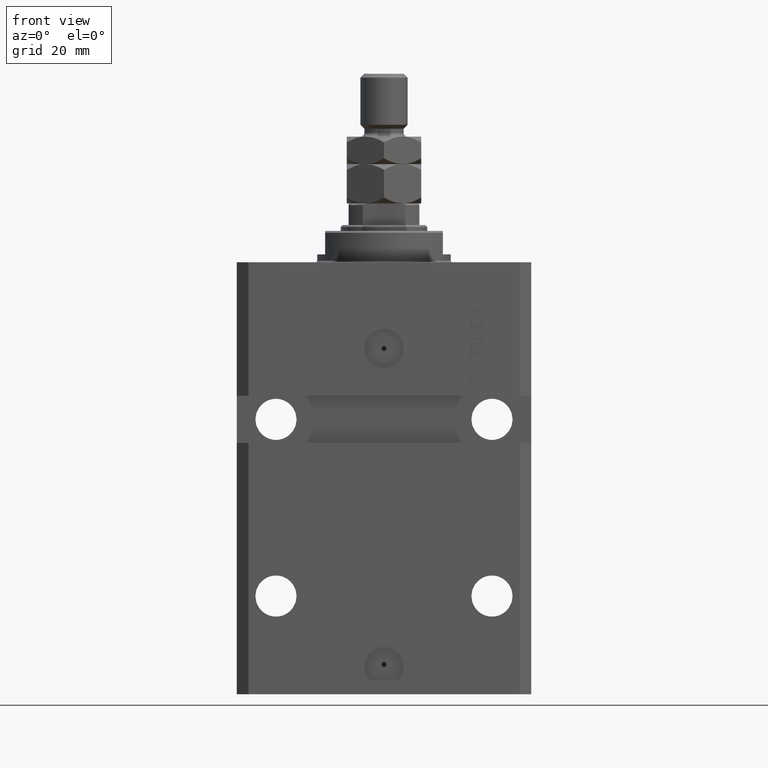
[diagram: clean part render]
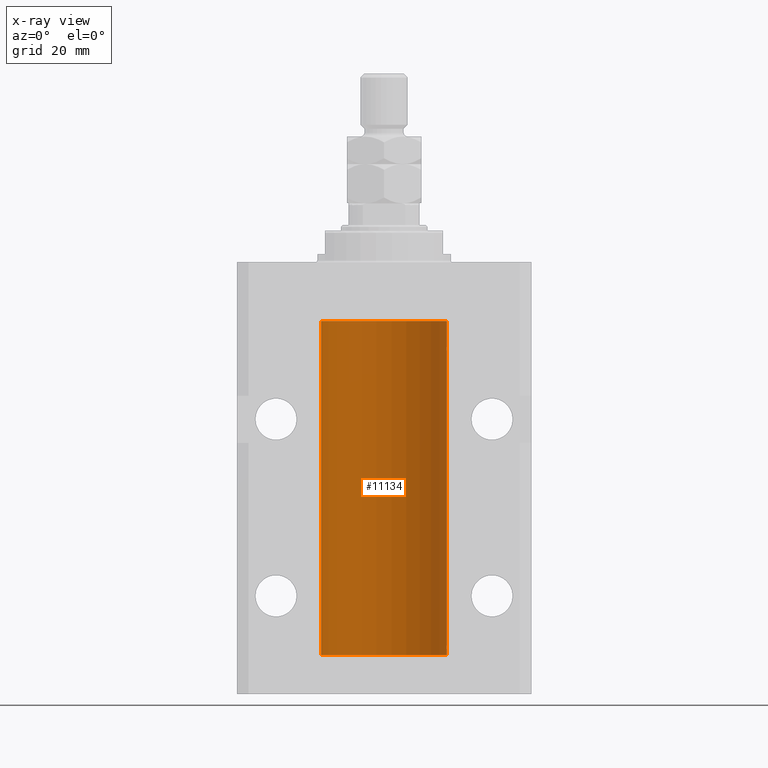
[diagram: x-ray — body ghosted, one internal face saturated and labeled with its STEP entity id]
A machine part, front view, then the same camera in x-ray: the body is ghosted and one INTERNAL B-rep face — a face not visible from any outside direction — is saturated and labeled: STEP entity #11134.
In plain terms, the highlighted cylindrical surface (partial cylindrical patch) has radius 16 mm, axis along (0, 0, 1).
Its self-contained STEP definition (entity closure, byte-faithful):
#531 = ORIENTED_EDGE ( 'NONE', *, *, #30288, .T. ) ;
#834 = ORIENTED_EDGE ( 'NONE', *, *, #35296, .T. ) ;
#1241 = CARTESIAN_POINT ( 'NONE',  ( 15.98778830858070954, 0.6250000000079481977, -21.99999999999914735 ) ) ;
#1424 = VERTEX_POINT ( 'NONE', #6422 ) ;
#1739 = CARTESIAN_POINT ( 'NONE',  ( 15.98844460043492077, 0.6087869699336542206, -21.83657454967558564 ) ) ;
#2162 = EDGE_LOOP ( 'NONE', ( #11929, #10989, #834, #46311, #39913, #33308, #26738, #22398, #41861, #531 ) ) ;
#2441 = EDGE_CURVE ( 'NONE', #1424, #31937, #8360, .T. ) ;
#2595 = CARTESIAN_POINT ( 'NONE',  ( 16.00000000000000000, -1.835653844722709729E-15, -98.62500000000000000 ) ) ;
#2904 = AXIS2_PLACEMENT_3D ( 'NONE', #39758, #36054, #20700 ) ;
#5046 = CARTESIAN_POINT ( 'NONE',  ( 15.98778830858103817, 0.6249999999997223332, -97.91847885046210820 ) ) ;
#5817 = CARTESIAN_POINT ( 'NONE',  ( 15.99548458234361448, 0.3844468804816183471, -98.49947786696355934 ) ) ;
#6003 = CARTESIAN_POINT ( 'NONE',  ( 15.99934183755191341, 0.1636877470526788836, -22.60872690654067796 ) ) ;
#6422 = CARTESIAN_POINT ( 'NONE',  ( 16.00000000000000000, -7.378931128587136680E-16, -22.62500000000000000 ) ) ;
#6936 = DIRECTION ( 'NONE',  ( -0.000000000000000000, -0.000000000000000000, 1.000000000000000000 ) ) ;
#7285 = CARTESIAN_POINT ( 'NONE',  ( 16.00000000000000000, 0.000000000000000000, -100.0999999999999943 ) ) ;
#7541 = CYLINDRICAL_SURFACE ( 'NONE', #11608, 16.00000000000000000 ) ;
#8267 = FACE_OUTER_BOUND ( 'NONE', #2162, .T. ) ;
#8360 = B_SPLINE_CURVE_WITH_KNOTS ( 'NONE', 3,
 ( #17395, #28998, #6003, #48070, #32714, #43860, #21094, #28752 ),
 .UNSPECIFIED., .F., .F.,
 ( 4, 2, 2, 4 ),
 ( 1.864948331951035013E-18, 0.0002443331572174913110, 0.0004886663144349807789, 0.0009773326288699671956 ),
 .UNSPECIFIED. ) ;
#8858 = VERTEX_POINT ( 'NONE', #35124 ) ;
#9042 = CARTESIAN_POINT ( 'NONE',  ( 16.00000000000000000, -1.835653844722709729E-15, -98.62500000000000000 ) ) ;
#10989 = ORIENTED_EDGE ( 'NONE', *, *, #40618, .F. ) ;
#11134 = ADVANCED_FACE ( 'NONE', ( #8267 ), #7541, .F. ) ;
#11277 = B_SPLINE_CURVE_WITH_KNOTS ( 'NONE', 3,
 ( #1241, #43565, #1739, #47523, #13387, #24741, #39120, #20794 ),
 .UNSPECIFIED., .F., .F.,
 ( 4, 2, 2, 4 ),
 ( 0.0009773326288699671956, 0.001221554802188560499, 0.001465776975507153803, 0.001954221322144333254 ),
 .UNSPECIFIED. ) ;
#11286 = EDGE_CURVE ( 'NONE', #41994, #38624, #39685, .T. ) ;
#11413 = CARTESIAN_POINT ( 'NONE',  ( 15.98778830858070954, 0.6250000000080517815, -97.99999999999916156 ) ) ;
#11608 = AXIS2_PLACEMENT_3D ( 'NONE', #37758, #18937, #23361 ) ;
#11929 = ORIENTED_EDGE ( 'NONE', *, *, #31671, .F. ) ;
#12122 = EDGE_CURVE ( 'NONE', #31937, #19995, #11277, .T. ) ;
#13264 = CARTESIAN_POINT ( 'NONE',  ( 15.98778830858070954, 0.6250000000080517815, -97.99999999999916156 ) ) ;
#13387 = CARTESIAN_POINT ( 'NONE',  ( 15.99228275317787507, 0.5002975944204003378, -21.61642014570181303 ) ) ;
#14425 = CARTESIAN_POINT ( 'NONE',  ( 15.99999999999999645, 0.1631343969470158417, -97.37500000000021316 ) ) ;
#14870 = VECTOR ( 'NONE', #26328, 1000.000000000000000 ) ;
#17395 = CARTESIAN_POINT ( 'NONE',  ( 16.00000000000000000, -7.378931128587136680E-16, -22.62500000000000000 ) ) ;
#18217 = LINE ( 'NONE', #38020, #31224 ) ;
#18356 = CARTESIAN_POINT ( 'NONE',  ( -16.00000000000000000, 1.959434878635765131E-15, -100.0999999999999943 ) ) ;
#18401 = CARTESIAN_POINT ( 'NONE',  ( 16.00000000000013145, 3.665532680419208314E-13, -21.37499999999658229 ) ) ;
#18937 = DIRECTION ( 'NONE',  ( -0.000000000000000000, -0.000000000000000000, 1.000000000000000000 ) ) ;
#19020 = VERTEX_POINT ( 'NONE', #40194 ) ;
#19995 = VERTEX_POINT ( 'NONE', #18401 ) ;
#20135 = CARTESIAN_POINT ( 'NONE',  ( 15.98844460043491367, 0.6087869699337551399, -97.83657454967556077 ) ) ;
#20534 = B_SPLINE_CURVE_WITH_KNOTS ( 'NONE', 3,
 ( #9042, #31571, #35777, #32058, #5817, #20909, #47160, #13264 ),
 .UNSPECIFIED., .F., .F.,
 ( 4, 2, 2, 4 ),
 ( 1.783888443149829469E-18, 0.0002443331572175257886, 0.0004886663144350497342, 0.0009773326288700682433 ),
 .UNSPECIFIED. ) ;
#20700 = DIRECTION ( 'NONE',  ( 1.000000000000000000, 0.000000000000000000, 0.000000000000000000 ) ) ;
#20794 = CARTESIAN_POINT ( 'NONE',  ( 16.00000000000013145, 3.665532680419208314E-13, -21.37499999999658229 ) ) ;
#20909 = CARTESIAN_POINT ( 'NONE',  ( 15.99070366873610283, 0.5574063959867601170, -98.32639436837558833 ) ) ;
#21094 = CARTESIAN_POINT ( 'NONE',  ( 15.98778830858101152, 0.6250000000001202372, -22.16311639173018477 ) ) ;
#21538 = LINE ( 'NONE', #40597, #33002 ) ;
#22398 = ORIENTED_EDGE ( 'NONE', *, *, #12122, .T. ) ;
#22605 = DIRECTION ( 'NONE',  ( -0.000000000000000000, -0.000000000000000000, 1.000000000000000000 ) ) ;
#23361 = DIRECTION ( 'NONE',  ( 1.000000000000000000, 0.000000000000000000, 0.000000000000000000 ) ) ;
#23671 = VERTEX_POINT ( 'NONE', #18356 ) ;
#23704 = AXIS2_PLACEMENT_3D ( 'NONE', #33813, #26859, #41976 ) ;
#23844 = CARTESIAN_POINT ( 'NONE',  ( 15.98778830858070954, 0.6250000000080517815, -97.99999999999916156 ) ) ;
#24229 = CIRCLE ( 'NONE', #2904, 16.00000000000000000 ) ;
#24741 = CARTESIAN_POINT ( 'NONE',  ( 15.99711856062700122, 0.3252985083513916242, -21.44140297987714661 ) ) ;
#26328 = DIRECTION ( 'NONE',  ( -0.000000000000000000, -0.000000000000000000, 1.000000000000000000 ) ) ;
#26556 = LINE ( 'NONE', #41418, #35490 ) ;
#26738 = ORIENTED_EDGE ( 'NONE', *, *, #2441, .T. ) ;
#26859 = DIRECTION ( 'NONE',  ( 0.000000000000000000, 0.000000000000000000, 1.000000000000000000 ) ) ;
#27146 = EDGE_CURVE ( 'NONE', #19995, #30949, #18217, .T. ) ;
#28752 = CARTESIAN_POINT ( 'NONE',  ( 15.98778830858070954, 0.6250000000079481977, -21.99999999999914735 ) ) ;
#28998 = CARTESIAN_POINT ( 'NONE',  ( 16.00000000000000000, 0.08261762387942135633, -22.62499999999996803 ) ) ;
#30089 = DIRECTION ( 'NONE',  ( -0.000000000000000000, -0.000000000000000000, 1.000000000000000000 ) ) ;
#30288 = EDGE_CURVE ( 'NONE', #30949, #19020, #24229, .T. ) ;
#30949 = VERTEX_POINT ( 'NONE', #47312 ) ;
#31224 = VECTOR ( 'NONE', #30089, 1000.000000000000000 ) ;
#31571 = CARTESIAN_POINT ( 'NONE',  ( 16.00000000000001066, 0.08261762387943044628, -98.62500000000001421 ) ) ;
#31671 = EDGE_CURVE ( 'NONE', #23671, #19020, #21538, .T. ) ;
#31937 = VERTEX_POINT ( 'NONE', #42704 ) ;
#32058 = CARTESIAN_POINT ( 'NONE',  ( 15.99707608081895138, 0.3151028052310259620, -98.54594170697734512 ) ) ;
#32262 = CARTESIAN_POINT ( 'NONE',  ( 15.99228275317786441, 0.5002975944204781644, -97.61642014570176684 ) ) ;
#32409 = CIRCLE ( 'NONE', #23704, 16.00000000000000000 ) ;
#32714 = CARTESIAN_POINT ( 'NONE',  ( 15.99548458234361803, 0.3844468804815583396, -22.49947786696350960 ) ) ;
#33002 = VECTOR ( 'NONE', #6936, 1000.000000000000000 ) ;
#33308 = ORIENTED_EDGE ( 'NONE', *, *, #47717, .T. ) ;
#33813 = CARTESIAN_POINT ( 'NONE',  ( 0.000000000000000000, 0.000000000000000000, -100.0999999999999943 ) ) ;
#35124 = CARTESIAN_POINT ( 'NONE',  ( 16.00000000000000000, 0.000000000000000000, -100.0999999999999943 ) ) ;
#35242 = CARTESIAN_POINT ( 'NONE',  ( 15.99070695999103542, 0.5461439696927204990, -97.68526802364048933 ) ) ;
#35296 = EDGE_CURVE ( 'NONE', #8858, #45141, #26556, .T. ) ;
#35490 = VECTOR ( 'NONE', #22605, 1000.000000000000000 ) ;
#35777 = CARTESIAN_POINT ( 'NONE',  ( 15.99934183755190986, 0.1636877470527013101, -98.60872690654072414 ) ) ;
#36054 = DIRECTION ( 'NONE',  ( 0.000000000000000000, 0.000000000000000000, 1.000000000000000000 ) ) ;
#37294 = EDGE_CURVE ( 'NONE', #45141, #41994, #20534, .T. ) ;
#37758 = CARTESIAN_POINT ( 'NONE',  ( 0.000000000000000000, 0.000000000000000000, -100.0999999999999943 ) ) ;
#38020 = CARTESIAN_POINT ( 'NONE',  ( 16.00000000000000000, 0.000000000000000000, -100.0999999999999943 ) ) ;
#38624 = VERTEX_POINT ( 'NONE', #48832 ) ;
#39120 = CARTESIAN_POINT ( 'NONE',  ( 15.99999999999999289, 0.1631343969470014366, -21.37500000000020606 ) ) ;
#39685 = B_SPLINE_CURVE_WITH_KNOTS ( 'NONE', 3,
 ( #23844, #5046, #20135, #35242, #32262, #47361, #14425, #47592 ),
 .UNSPECIFIED., .F., .F.,
 ( 4, 2, 2, 4 ),
 ( 0.0009773326288700682433, 0.001221554802188685399, 0.001465776975507302772, 0.001954221322144537518 ),
 .UNSPECIFIED. ) ;
#39758 = CARTESIAN_POINT ( 'NONE',  ( 0.000000000000000000, 0.000000000000000000, -15.00000000000000000 ) ) ;
#39913 = ORIENTED_EDGE ( 'NONE', *, *, #11286, .T. ) ;
#40194 = CARTESIAN_POINT ( 'NONE',  ( -16.00000000000000000, 1.959434878635765131E-15, -15.00000000000000000 ) ) ;
#40597 = CARTESIAN_POINT ( 'NONE',  ( -16.00000000000000000, 1.959434878635765131E-15, -100.0999999999999943 ) ) ;
#40618 = EDGE_CURVE ( 'NONE', #8858, #23671, #32409, .T. ) ;
#41203 = LINE ( 'NONE', #7285, #14870 ) ;
#41418 = CARTESIAN_POINT ( 'NONE',  ( 16.00000000000000000, 0.000000000000000000, -100.0999999999999943 ) ) ;
#41861 = ORIENTED_EDGE ( 'NONE', *, *, #27146, .T. ) ;
#41976 = DIRECTION ( 'NONE',  ( 1.000000000000000000, 0.000000000000000000, 0.000000000000000000 ) ) ;
#41994 = VERTEX_POINT ( 'NONE', #11413 ) ;
#42704 = CARTESIAN_POINT ( 'NONE',  ( 15.98778830858070954, 0.6250000000079481977, -21.99999999999914735 ) ) ;
#43565 = CARTESIAN_POINT ( 'NONE',  ( 15.98778830858104172, 0.6249999999996183053, -21.91847885046212951 ) ) ;
#43860 = CARTESIAN_POINT ( 'NONE',  ( 15.99070366873610638, 0.5574063959866681905, -22.32639436837549596 ) ) ;
#45141 = VERTEX_POINT ( 'NONE', #2595 ) ;
#46311 = ORIENTED_EDGE ( 'NONE', *, *, #37294, .T. ) ;
#47160 = CARTESIAN_POINT ( 'NONE',  ( 15.98778830858101685, 0.6250000000002223777, -98.16311639173024162 ) ) ;
#47312 = CARTESIAN_POINT ( 'NONE',  ( 16.00000000000000000, 0.000000000000000000, -15.00000000000000000 ) ) ;
#47361 = CARTESIAN_POINT ( 'NONE',  ( 15.99711856062700477, 0.3252985083514284281, -97.44140297987712529 ) ) ;
#47523 = CARTESIAN_POINT ( 'NONE',  ( 15.99070695999104252, 0.5461439696926362330, -21.68526802364053552 ) ) ;
#47592 = CARTESIAN_POINT ( 'NONE',  ( 16.00000000000013145, 3.665532692826917502E-13, -97.37499999999657518 ) ) ;
#47717 = EDGE_CURVE ( 'NONE', #38624, #1424, #41203, .T. ) ;
#48070 = CARTESIAN_POINT ( 'NONE',  ( 15.99707608081895494, 0.3151028052309814975, -22.54594170697728117 ) ) ;
#48832 = CARTESIAN_POINT ( 'NONE',  ( 16.00000000000013145, 3.665532692826917502E-13, -97.37499999999657518 ) ) ;